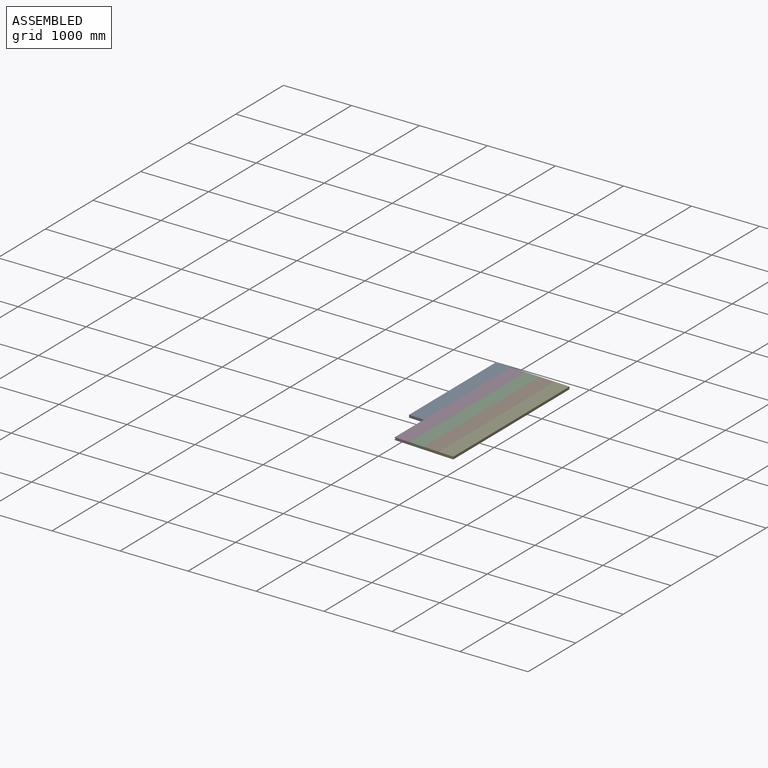
[diagram: assembled view]
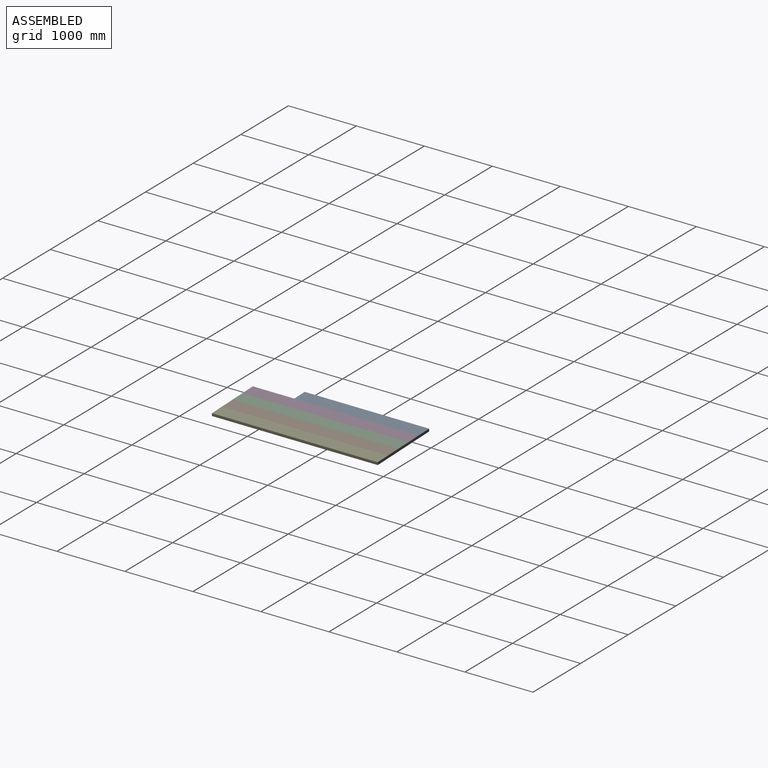
[diagram: assembled view, second angle]
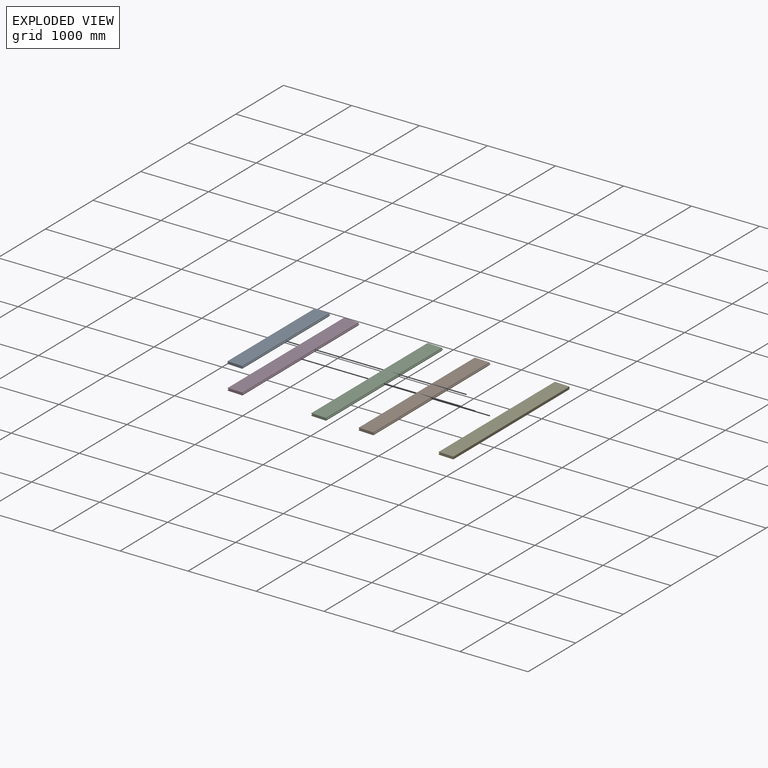
[diagram: exploded view]
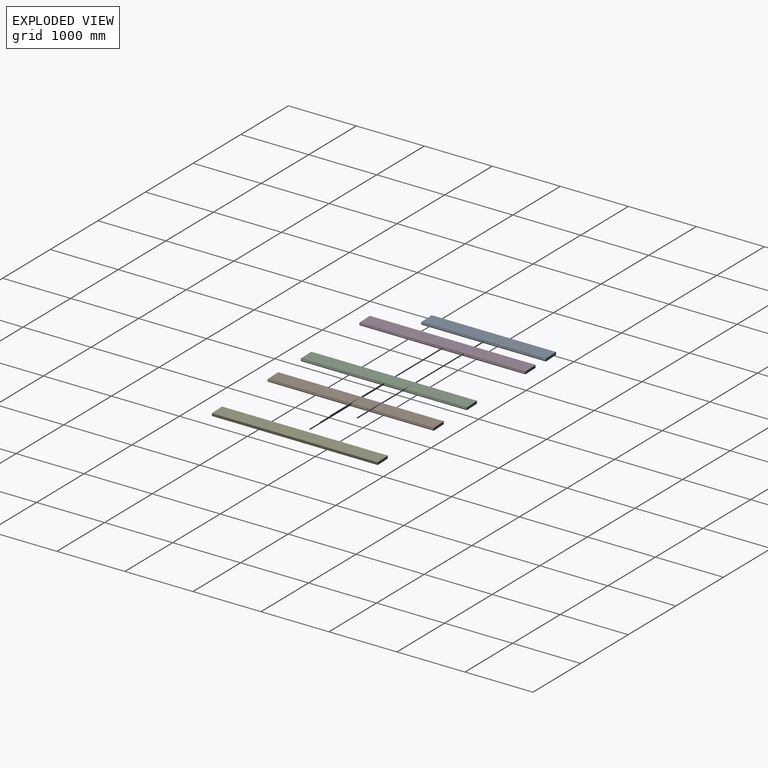
[diagram: exploded view, second angle]
ASSEMBLY  parts=5 mates=4
PART A: 11 faces, bbox 228.6x1828.8x38.1 mm
  f0: plane 1828.8x38.1mm, normal (-1,0,0), area 69677.3mm2, adj f1,f4,f5,f6
  f1: plane 1828.8x215.9mm, normal (0,0,-1), area 394837.9mm2, adj f0,f2,f5,f6
  f2: plane 1828.8x6.35mm, normal (1,0,0), area 11612.9mm2, adj f1,f5,f6,f10
  f3: plane 1828.8x5.08mm, normal (1,0,0), area 9290.3mm2, adj f5,f6,f7,f8
  f4: plane 1828.8x214.63mm, normal (0,0,1), area 392515.3mm2, adj f0,f5,f6,f7
  f5: plane 228.6x38.1mm, normal (0,-1,0), area 8386.3mm2, adj f0,f1,f2,f3,f4,f7,f8,f9
  f6: plane 228.6x38.1mm, normal (0,1,0), area 8386.3mm2, adj f0,f1,f2,f3,f4,f7,f8,f9
  f7: plane 1828.8x1.27mm, normal (0.71,0,0.71), area 3284.6mm2, adj f3,f4,f5,f6
  f8: cylinder r=6.35mm len=1828.8mm, axis (0,1,0), area 18241.5mm2, adj f3,f5,f6,f9
  f9: cylinder r=6.35mm len=1828.8mm, axis (0,1,0), area 36482.9mm2, adj f5,f6,f8,f10
  f10: cylinder r=6.35mm len=1828.8mm, axis (0,-1,0), area 18241.5mm2, adj f2,f5,f6,f9
PART B: 16 faces, bbox 228.6x2438.4x38.1 mm
  f0: plane 2438.4x6.35mm, normal (-1,0,0), area 15483.8mm2, adj f1,f6,f7,f13
  f1: plane 2438.4x215.9mm, normal (0,0,-1), area 526450.6mm2, adj f0,f2,f6,f7
  f2: plane 2438.4x6.35mm, normal (1,0,0), area 15483.8mm2, adj f1,f6,f7,f12
  f3: plane 2438.4x5.08mm, normal (1,0,0), area 12387.1mm2, adj f6,f7,f9,f10
  f4: plane 2438.4x213.36mm, normal (0,0,1), area 520257mm2, adj f6,f7,f8,f9
  f5: plane 2438.4x5.08mm, normal (-1,0,0), area 12387.1mm2, adj f6,f7,f8,f15
  f6: plane 228.6x38.1mm, normal (0,1,0), area 8224.2mm2, adj f0,f1,f2,f3,f4,f5,f8,f9
  f7: plane 228.6x38.1mm, normal (0,-1,0), area 8224.2mm2, adj f0,f1,f2,f3,f4,f5,f8,f9
  f8: plane 2438.4x1.27mm, normal (-0.71,0,0.71), area 4379.5mm2, adj f4,f5,f6,f7
  f9: plane 2438.4x1.27mm, normal (0.71,0,0.71), area 4379.5mm2, adj f3,f4,f6,f7
  f10: cylinder r=6.35mm len=2438.4mm, axis (0,-1,0), area 24322mm2, adj f3,f6,f7,f11
  f11: cylinder r=6.35mm len=2438.4mm, axis (0,1,0), area 48643.9mm2, adj f6,f7,f10,f12
  f12: cylinder r=6.35mm len=2438.4mm, axis (0,1,0), area 24322mm2, adj f2,f6,f7,f11
  f13: cylinder r=6.35mm len=2438.4mm, axis (0,-1,0), area 24322mm2, adj f0,f6,f7,f14
  f14: cylinder r=6.35mm len=2438.4mm, axis (0,1,0), area 48643.9mm2, adj f6,f7,f13,f15
  f15: cylinder r=6.35mm len=2438.4mm, axis (0,1,0), area 24322mm2, adj f5,f6,f7,f14
PART C: same geometry as B
PART D: same geometry as B
PART E: 11 faces, bbox 215.9x2438.4x38.1 mm
  f0: plane 2438.4x6.35mm, normal (-1,0,0), area 15483.8mm2, adj f1,f5,f6,f8
  f1: plane 2438.4x215.9mm, normal (0,0,-1), area 526450.6mm2, adj f0,f2,f5,f6
  f2: plane 2438.4x38.1mm, normal (1,0,0), area 92903mm2, adj f1,f3,f5,f6
  f3: plane 2438.4x214.63mm, normal (0,0,1), area 523353.8mm2, adj f2,f5,f6,f7
  f4: plane 2438.4x5.08mm, normal (-1,0,0), area 12387.1mm2, adj f5,f6,f7,f10
  f5: plane 215.9x38.1mm, normal (0,-1,0), area 8063.7mm2, adj f0,f1,f2,f3,f4,f7,f8,f9
  f6: plane 215.9x38.1mm, normal (0,1,0), area 8063.7mm2, adj f0,f1,f2,f3,f4,f7,f8,f9
  f7: plane 2438.4x1.27mm, normal (-0.71,0,0.71), area 4379.5mm2, adj f3,f4,f5,f6
  f8: cylinder r=6.35mm len=2438.4mm, axis (0,1,0), area 24322mm2, adj f0,f5,f6,f9
  f9: cylinder r=6.35mm len=2438.4mm, axis (0,1,0), area 48643.9mm2, adj f5,f6,f8,f10
  f10: cylinder r=6.35mm len=2438.4mm, axis (0,-1,0), area 24322mm2, adj f4,f5,f6,f9
PLACE A rot(axis=(0,1,0),1.8deg) t=(-236.87,806.43,-173.14)mm
PLACE B rot(axis=(0,1,0),1.8deg) t=(410.5,-1631.97,-193.97)mm
PLACE C rot(axis=(0,1,0),1.8deg) t=(194.71,-1631.97,-187.03)mm
PLACE D rot(axis=(0,1,0),1.8deg) t=(-21.08,-1631.97,-180.08)mm
PLACE E rot(axis=(0,1,0),1.8deg) t=(626.29,806.43,-200.91)mm
MATE slider E.f9 <-> B.f11  axis (0,1,0) through (633.24,-412.77,-182.07)mm
MATE slider C.f14 <-> D.f11  axis (0,1,0) through (201.67,-1631.97,-168.19)mm
MATE slider D.f14 <-> A.f9  axis (0,1,0) through (-14.12,-1631.97,-161.25)mm
MATE slider B.f14 <-> C.f11  axis (0,1,0) through (417.46,-412.77,-175.13)mm
